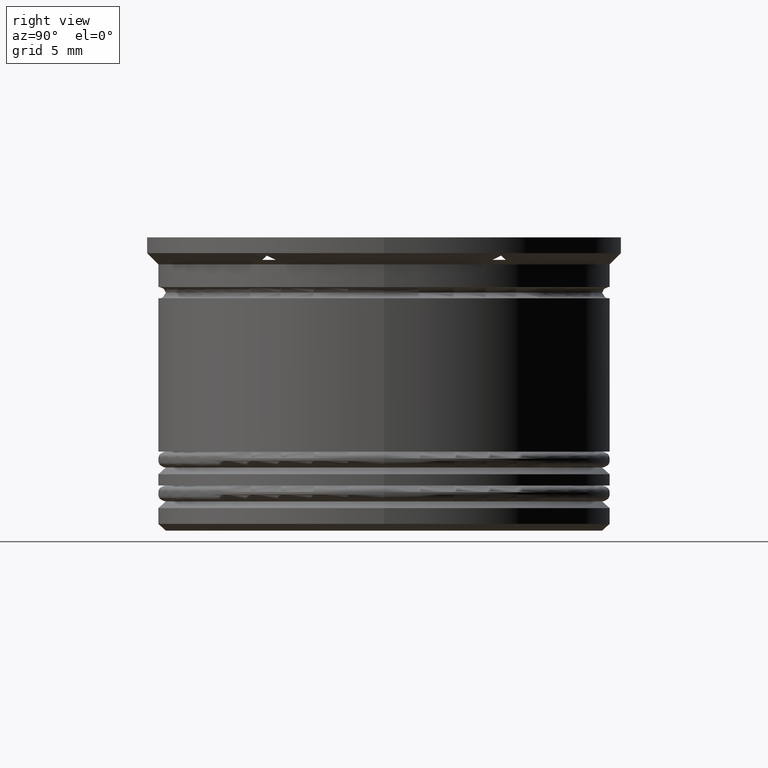
[diagram: clean part render]
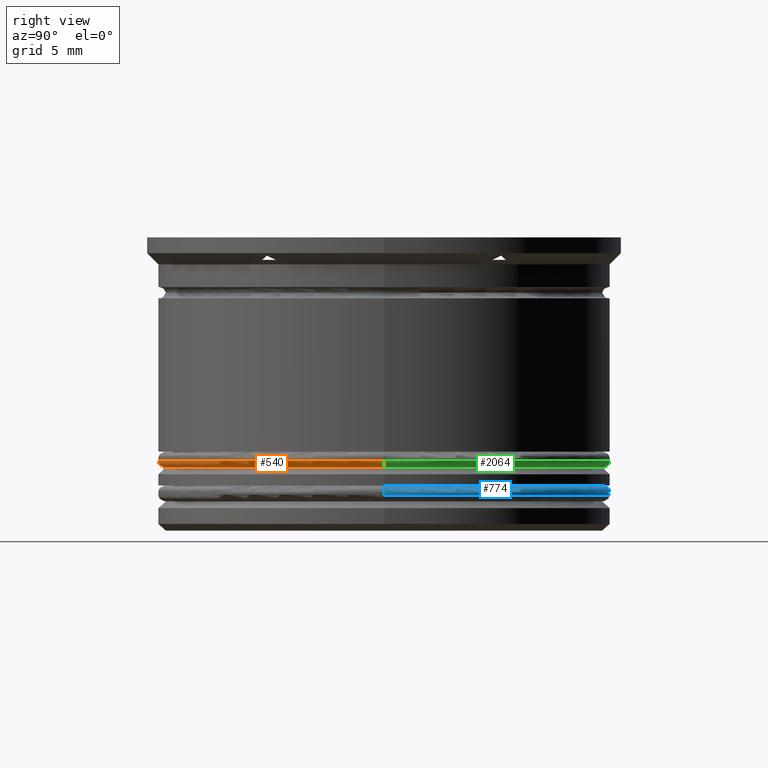
[diagram: same view with three faces highlighted in distinct colors, each labeled with its STEP entity id]
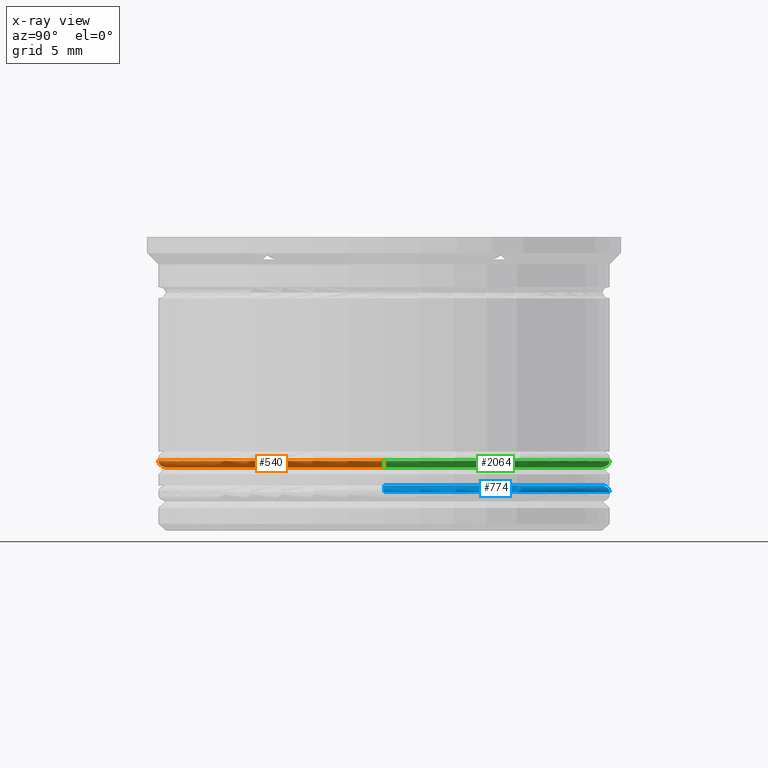
[diagram: x-ray of the same camera — body ghosted, the three highlighted faces saturated]
A machine part, right view with three faces highlighted in distinct colors.
The next image is the same camera in x-ray (body ghosted, the three faces saturated) — at least one of them is partly hidden behind the body in this view.
Their STEP definitions:

[orange] entity #540 — the highlighted toroidal blend (fillet) surface has major radius 9.7 mm and minor (blend) radius 0.3 mm.
#85 = ORIENTED_EDGE ( 'NONE', *, *, #642, .F. ) ;
#88 = FACE_OUTER_BOUND ( 'NONE', #1015, .T. ) ;
#131 = CIRCLE ( 'NONE', #1386, 0.2999999999999999334 ) ;
#150 = CARTESIAN_POINT ( 'NONE',  ( -10.00000000000000178, 1.224646799147353256E-15, -9.900000000000005684 ) ) ;
#158 = CIRCLE ( 'NONE', #1352, 10.00000000000000178 ) ;
#328 = VERTEX_POINT ( 'NONE', #2075 ) ;
#335 = ORIENTED_EDGE ( 'NONE', *, *, #663, .F. ) ;
#356 = ORIENTED_EDGE ( 'NONE', *, *, #2028, .T. ) ;
#358 = CARTESIAN_POINT ( 'NONE',  ( -9.700000000000002842, 1.187907395172932791E-15, -9.900000000000005684 ) ) ;
#363 = VERTEX_POINT ( 'NONE', #1967 ) ;
#454 = DIRECTION ( 'NONE',  ( 0.000000000000000000, 0.000000000000000000, 1.000000000000000000 ) ) ;
#540 = ADVANCED_FACE ( 'NONE', ( #88 ), #1563, .T. ) ;
#611 = EDGE_CURVE ( 'NONE', #1279, #363, #158, .T. ) ;
#613 = DIRECTION ( 'NONE',  ( 1.000000000000000000, 0.000000000000000000, 0.000000000000000000 ) ) ;
#642 = EDGE_CURVE ( 'NONE', #328, #1279, #1850, .T. ) ;
#663 = EDGE_CURVE ( 'NONE', #2084, #328, #1739, .T. ) ;
#679 = CARTESIAN_POINT ( 'NONE',  ( 0.000000000000000000, 0.000000000000000000, -9.900000000000005684 ) ) ;
#816 = AXIS2_PLACEMENT_3D ( 'NONE', #358, #2060, #1348 ) ;
#945 = ORIENTED_EDGE ( 'NONE', *, *, #611, .F. ) ;
#1015 = EDGE_LOOP ( 'NONE', ( #85, #335, #356, #945 ) ) ;
#1033 = CARTESIAN_POINT ( 'NONE',  ( 0.000000000000000000, 0.000000000000000000, -10.20000000000000817 ) ) ;
#1208 = DIRECTION ( 'NONE',  ( 1.000000000000000000, 0.000000000000000000, 0.000000000000000000 ) ) ;
#1277 = DIRECTION ( 'NONE',  ( 0.000000000000000000, 0.000000000000000000, -1.000000000000000000 ) ) ;
#1279 = VERTEX_POINT ( 'NONE', #150 ) ;
#1348 = DIRECTION ( 'NONE',  ( -1.000000000000000000, 1.224646799147353207E-16, 0.000000000000000000 ) ) ;
#1352 = AXIS2_PLACEMENT_3D ( 'NONE', #679, #1546, #1721 ) ;
#1386 = AXIS2_PLACEMENT_3D ( 'NONE', #1919, #1611, #1277 ) ;
#1429 = CARTESIAN_POINT ( 'NONE',  ( 0.000000000000000000, 0.000000000000000000, -9.900000000000005684 ) ) ;
#1546 = DIRECTION ( 'NONE',  ( 0.000000000000000000, 0.000000000000000000, 1.000000000000000000 ) ) ;
#1563 = TOROIDAL_SURFACE ( 'NONE', #2017, 9.700000000000002842, 0.2999999999999999889 ) ;
#1611 = DIRECTION ( 'NONE',  ( 0.000000000000000000, -1.000000000000000000, 0.000000000000000000 ) ) ;
#1635 = AXIS2_PLACEMENT_3D ( 'NONE', #1033, #1891, #1208 ) ;
#1721 = DIRECTION ( 'NONE',  ( 1.000000000000000000, 0.000000000000000000, 0.000000000000000000 ) ) ;
#1739 = CIRCLE ( 'NONE', #1635, 9.700000000000002842 ) ;
#1850 = CIRCLE ( 'NONE', #816, 0.2999999999999999334 ) ;
#1891 = DIRECTION ( 'NONE',  ( -0.000000000000000000, -0.000000000000000000, -1.000000000000000000 ) ) ;
#1919 = CARTESIAN_POINT ( 'NONE',  ( 9.700000000000002842, 0.000000000000000000, -9.900000000000005684 ) ) ;
#1944 = CARTESIAN_POINT ( 'NONE',  ( 9.700000000000002842, 0.000000000000000000, -10.20000000000000817 ) ) ;
#1967 = CARTESIAN_POINT ( 'NONE',  ( 10.00000000000000178, 0.000000000000000000, -9.900000000000005684 ) ) ;
#2017 = AXIS2_PLACEMENT_3D ( 'NONE', #1429, #454, #613 ) ;
#2028 = EDGE_CURVE ( 'NONE', #2084, #363, #131, .T. ) ;
#2060 = DIRECTION ( 'NONE',  ( 1.224646799147353207E-16, 1.000000000000000000, -0.000000000000000000 ) ) ;
#2075 = CARTESIAN_POINT ( 'NONE',  ( -9.700000000000002842, 1.206277097160143024E-15, -10.20000000000000817 ) ) ;
#2084 = VERTEX_POINT ( 'NONE', #1944 ) ;

[blue] entity #774 — the highlighted toroidal blend (fillet) surface has major radius 9.7 mm and minor (blend) radius 0.3 mm.
#32 = DIRECTION ( 'NONE',  ( -0.000000000000000000, -1.000000000000000000, -0.000000000000000000 ) ) ;
#216 = ORIENTED_EDGE ( 'NONE', *, *, #1248, .F. ) ;
#219 = VERTEX_POINT ( 'NONE', #352 ) ;
#275 = CIRCLE ( 'NONE', #1918, 0.2999999999999999334 ) ;
#323 = DIRECTION ( 'NONE',  ( 0.000000000000000000, 0.000000000000000000, -1.000000000000000000 ) ) ;
#350 = AXIS2_PLACEMENT_3D ( 'NONE', #1998, #323, #1313 ) ;
#352 = CARTESIAN_POINT ( 'NONE',  ( -9.700000000000002842, 0.000000000000000000, -11.00000000000000000 ) ) ;
#421 = CIRCLE ( 'NONE', #823, 0.2999999999999999334 ) ;
#428 = EDGE_LOOP ( 'NONE', ( #2162, #1591, #216, #2146 ) ) ;
#470 = CARTESIAN_POINT ( 'NONE',  ( -10.00000000000000178, 1.224646799147353454E-15, -11.29999999999999716 ) ) ;
#531 = CARTESIAN_POINT ( 'NONE',  ( 0.000000000000000000, 0.000000000000000000, -11.00000000000000000 ) ) ;
#539 = CARTESIAN_POINT ( 'NONE',  ( 10.00000000000000178, 0.000000000000000000, -11.29999999999999716 ) ) ;
#550 = CARTESIAN_POINT ( 'NONE',  ( 9.700000000000002842, 1.206277097160143024E-15, -11.00000000000000000 ) ) ;
#588 = DIRECTION ( 'NONE',  ( -1.000000000000000000, -1.224646799147353207E-16, 0.000000000000000000 ) ) ;
#657 = VERTEX_POINT ( 'NONE', #539 ) ;
#748 = AXIS2_PLACEMENT_3D ( 'NONE', #1910, #2106, #1614 ) ;
#774 = ADVANCED_FACE ( 'NONE', ( #1603 ), #1323, .T. ) ;
#823 = AXIS2_PLACEMENT_3D ( 'NONE', #2005, #1068, #588 ) ;
#959 = EDGE_CURVE ( 'NONE', #219, #1568, #275, .T. ) ;
#1044 = DIRECTION ( 'NONE',  ( -0.000000000000000000, -0.000000000000000000, 1.000000000000000000 ) ) ;
#1068 = DIRECTION ( 'NONE',  ( -1.224646799147353207E-16, 1.000000000000000000, 0.000000000000000000 ) ) ;
#1182 = CARTESIAN_POINT ( 'NONE',  ( -9.700000000000002842, 0.000000000000000000, -11.29999999999999716 ) ) ;
#1197 = DIRECTION ( 'NONE',  ( -1.000000000000000000, 0.000000000000000000, 0.000000000000000000 ) ) ;
#1248 = EDGE_CURVE ( 'NONE', #1568, #657, #1818, .T. ) ;
#1313 = DIRECTION ( 'NONE',  ( -1.000000000000000000, 0.000000000000000000, 0.000000000000000000 ) ) ;
#1323 = TOROIDAL_SURFACE ( 'NONE', #748, 9.700000000000002842, 0.2999999999999999889 ) ;
#1332 = EDGE_CURVE ( 'NONE', #1468, #657, #421, .T. ) ;
#1468 = VERTEX_POINT ( 'NONE', #550 ) ;
#1568 = VERTEX_POINT ( 'NONE', #470 ) ;
#1591 = ORIENTED_EDGE ( 'NONE', *, *, #1332, .T. ) ;
#1603 = FACE_OUTER_BOUND ( 'NONE', #428, .T. ) ;
#1614 = DIRECTION ( 'NONE',  ( -1.000000000000000000, 0.000000000000000000, 0.000000000000000000 ) ) ;
#1748 = CIRCLE ( 'NONE', #1923, 9.700000000000002842 ) ;
#1818 = CIRCLE ( 'NONE', #350, 10.00000000000000178 ) ;
#1821 = EDGE_CURVE ( 'NONE', #1468, #219, #1748, .T. ) ;
#1910 = CARTESIAN_POINT ( 'NONE',  ( 0.000000000000000000, 0.000000000000000000, -11.29999999999999716 ) ) ;
#1918 = AXIS2_PLACEMENT_3D ( 'NONE', #1182, #32, #2044 ) ;
#1923 = AXIS2_PLACEMENT_3D ( 'NONE', #531, #1044, #1197 ) ;
#1998 = CARTESIAN_POINT ( 'NONE',  ( 0.000000000000000000, 0.000000000000000000, -11.29999999999999716 ) ) ;
#2005 = CARTESIAN_POINT ( 'NONE',  ( 9.700000000000002842, 1.187907395172932791E-15, -11.29999999999999716 ) ) ;
#2044 = DIRECTION ( 'NONE',  ( 0.000000000000000000, 0.000000000000000000, -1.000000000000000000 ) ) ;
#2106 = DIRECTION ( 'NONE',  ( 0.000000000000000000, 0.000000000000000000, -1.000000000000000000 ) ) ;
#2146 = ORIENTED_EDGE ( 'NONE', *, *, #959, .F. ) ;
#2162 = ORIENTED_EDGE ( 'NONE', *, *, #1821, .F. ) ;

[green] entity #2064 — the highlighted toroidal blend (fillet) surface has major radius 9.7 mm and minor (blend) radius 0.3 mm.
#44 = EDGE_LOOP ( 'NONE', ( #1554, #893, #2079, #1677 ) ) ;
#131 = CIRCLE ( 'NONE', #1386, 0.2999999999999999334 ) ;
#150 = CARTESIAN_POINT ( 'NONE',  ( -10.00000000000000178, 1.224646799147353256E-15, -9.900000000000005684 ) ) ;
#208 = TOROIDAL_SURFACE ( 'NONE', #379, 9.700000000000002842, 0.2999999999999999889 ) ;
#313 = CIRCLE ( 'NONE', #1922, 10.00000000000000178 ) ;
#328 = VERTEX_POINT ( 'NONE', #2075 ) ;
#358 = CARTESIAN_POINT ( 'NONE',  ( -9.700000000000002842, 1.187907395172932791E-15, -9.900000000000005684 ) ) ;
#363 = VERTEX_POINT ( 'NONE', #1967 ) ;
#379 = AXIS2_PLACEMENT_3D ( 'NONE', #820, #808, #1129 ) ;
#439 = DIRECTION ( 'NONE',  ( 0.000000000000000000, 0.000000000000000000, 1.000000000000000000 ) ) ;
#642 = EDGE_CURVE ( 'NONE', #328, #1279, #1850, .T. ) ;
#785 = FACE_OUTER_BOUND ( 'NONE', #44, .T. ) ;
#808 = DIRECTION ( 'NONE',  ( 0.000000000000000000, 0.000000000000000000, 1.000000000000000000 ) ) ;
#816 = AXIS2_PLACEMENT_3D ( 'NONE', #358, #2060, #1348 ) ;
#820 = CARTESIAN_POINT ( 'NONE',  ( 0.000000000000000000, 0.000000000000000000, -9.900000000000005684 ) ) ;
#893 = ORIENTED_EDGE ( 'NONE', *, *, #642, .T. ) ;
#949 = AXIS2_PLACEMENT_3D ( 'NONE', #1084, #1613, #1101 ) ;
#1052 = CIRCLE ( 'NONE', #949, 9.700000000000002842 ) ;
#1074 = EDGE_CURVE ( 'NONE', #328, #2084, #1052, .T. ) ;
#1084 = CARTESIAN_POINT ( 'NONE',  ( 0.000000000000000000, 0.000000000000000000, -10.20000000000000817 ) ) ;
#1101 = DIRECTION ( 'NONE',  ( 1.000000000000000000, 0.000000000000000000, 0.000000000000000000 ) ) ;
#1117 = CARTESIAN_POINT ( 'NONE',  ( 0.000000000000000000, 0.000000000000000000, -9.900000000000005684 ) ) ;
#1129 = DIRECTION ( 'NONE',  ( 1.000000000000000000, 0.000000000000000000, 0.000000000000000000 ) ) ;
#1167 = EDGE_CURVE ( 'NONE', #363, #1279, #313, .T. ) ;
#1277 = DIRECTION ( 'NONE',  ( 0.000000000000000000, 0.000000000000000000, -1.000000000000000000 ) ) ;
#1279 = VERTEX_POINT ( 'NONE', #150 ) ;
#1348 = DIRECTION ( 'NONE',  ( -1.000000000000000000, 1.224646799147353207E-16, 0.000000000000000000 ) ) ;
#1386 = AXIS2_PLACEMENT_3D ( 'NONE', #1919, #1611, #1277 ) ;
#1554 = ORIENTED_EDGE ( 'NONE', *, *, #1074, .F. ) ;
#1589 = DIRECTION ( 'NONE',  ( 1.000000000000000000, 0.000000000000000000, 0.000000000000000000 ) ) ;
#1611 = DIRECTION ( 'NONE',  ( 0.000000000000000000, -1.000000000000000000, 0.000000000000000000 ) ) ;
#1613 = DIRECTION ( 'NONE',  ( -0.000000000000000000, -0.000000000000000000, -1.000000000000000000 ) ) ;
#1677 = ORIENTED_EDGE ( 'NONE', *, *, #2028, .F. ) ;
#1850 = CIRCLE ( 'NONE', #816, 0.2999999999999999334 ) ;
#1919 = CARTESIAN_POINT ( 'NONE',  ( 9.700000000000002842, 0.000000000000000000, -9.900000000000005684 ) ) ;
#1922 = AXIS2_PLACEMENT_3D ( 'NONE', #1117, #439, #1589 ) ;
#1944 = CARTESIAN_POINT ( 'NONE',  ( 9.700000000000002842, 0.000000000000000000, -10.20000000000000817 ) ) ;
#1967 = CARTESIAN_POINT ( 'NONE',  ( 10.00000000000000178, 0.000000000000000000, -9.900000000000005684 ) ) ;
#2028 = EDGE_CURVE ( 'NONE', #2084, #363, #131, .T. ) ;
#2060 = DIRECTION ( 'NONE',  ( 1.224646799147353207E-16, 1.000000000000000000, -0.000000000000000000 ) ) ;
#2064 = ADVANCED_FACE ( 'NONE', ( #785 ), #208, .T. ) ;
#2075 = CARTESIAN_POINT ( 'NONE',  ( -9.700000000000002842, 1.206277097160143024E-15, -10.20000000000000817 ) ) ;
#2079 = ORIENTED_EDGE ( 'NONE', *, *, #1167, .F. ) ;
#2084 = VERTEX_POINT ( 'NONE', #1944 ) ;